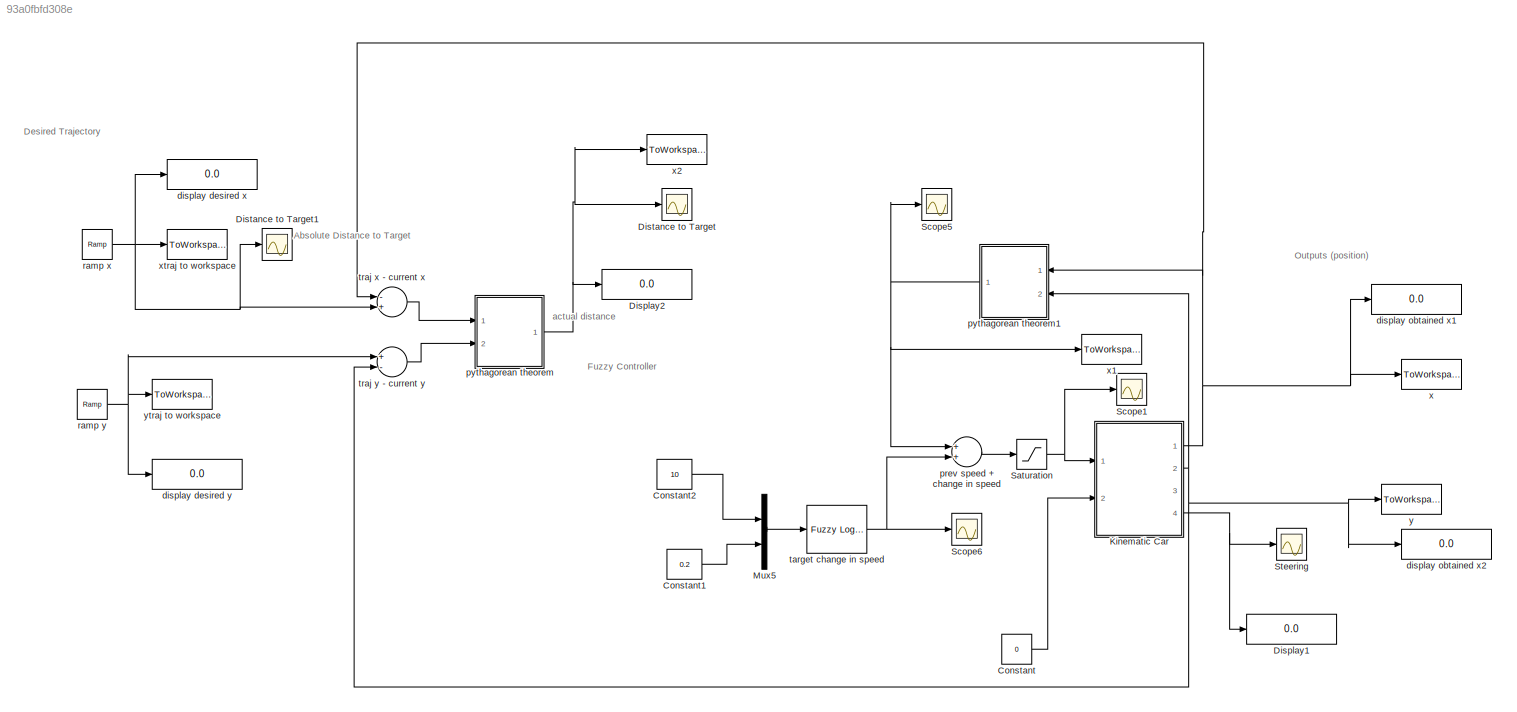
MODEL slx_93a0fbfd308e
KIND model
CONFIG AbsTol = auto
CONFIG FixedStep = auto
CONFIG MaxStep = auto
CONFIG MinStep = auto
CONFIG RelTol = 1e-3
CONFIG SampleTimeConstraint = Unconstrained
CONFIG Solver = FixedStepDiscrete
CONFIG SolverMode = Auto
CONFIG SolverName = FixedStepDiscrete
CONFIG StartTime = 0.0
CONFIG StopTime = 25
BLOCK [Constant] Constant
  Value = 0
BLOCK [Constant] Constant1
  Value = 0.2
BLOCK [Constant] Constant2
  Value = 10
BLOCK [Display] Display1
  Decimation = 1
  Ports = [1]
BLOCK [Display] Display2
  Decimation = 1
  Ports = [1]
BLOCK [Scope] Distance to Target
  Ports = [1]
  ScopeSpecificationString = Simulink.scopes.TimeScopeBlockCfg('CurrentConfiguration', extmgr.ConfigurationSet(extmgr.Configuration('Core','General UI',true),extmgr.Configuration('Core','Source UI',true),extmgr.Configuration('Sources','WiredSimulink',true,'DataLoggingVariableName','ScopeData1','DataLoggingLimitDataPoints',true,'DataLoggingSaveFormat','Array','DataLoggingDecimation','1','DataLoggingDecimateData',true),extmgr.C...<+1729ch>
BLOCK [Scope] Distance to Target1
  Ports = [1]
  ScopeSpecificationString = C++SS(StrPVP('Location','[10, 87, 1361, 757]'),StrPVP('Open','off'),MxPVP('AxesTitles',24,'struct(''axes1'',''%<SignalLabel>'')'),MxPVP('ScopeGraphics',28,'struct(''FigureColor'',''[0.5 0.5 0.5]'',''AxesColor'',''[0 0 0]'',''AxesTickColor'',''[1 1 1]'',''LineColors'',''[1 1 0;1 0 1;0 1 1;1 0 0;0 1 0;0 0 1]'',''LineStyles'',''-|-|-|-|-|-'',''LineWidths'',''[0.5 0.5 0.5 0.5 0.5 0.5]'',''MarkerStyles...<+240ch>
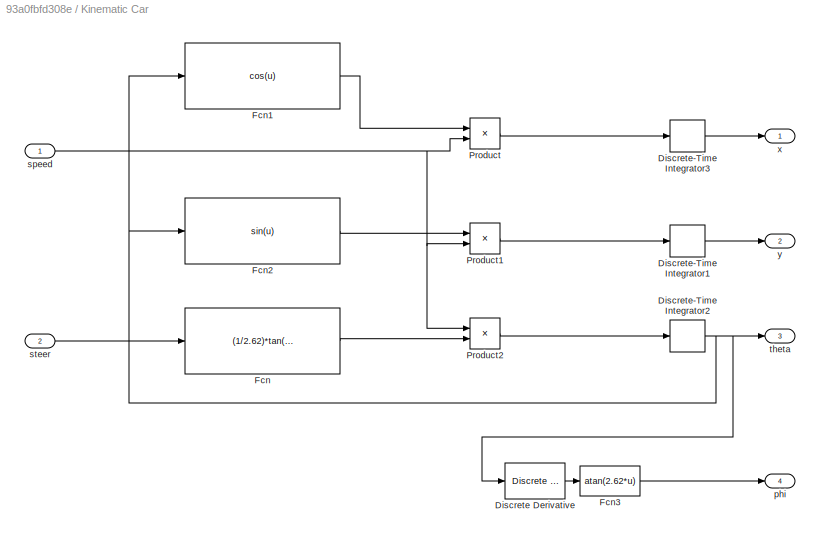
BLOCK [SubSystem] Kinematic Car
  Ports = [2, 4]
  RequestExecContextInheritance = off
  Variant = off
BLOCK [Reference] Kinematic Car/Discrete Derivative  REF=simulink/Discrete/Discrete Derivative
  Ports = [1, 1]
  SourceBlock = simulink/Discrete/Discrete Derivative
  SourceType = Discrete Derivative
BLOCK [DiscreteIntegrator] Kinematic Car/Discrete-Time Integrator1
  ICPrevOutput = DiscIntNeverNeededParam
  ICPrevScaledInput = DiscIntNeverNeededParam
  InitialConditionSetting = State (most efficient)
  Ports = [1, 1]
BLOCK [DiscreteIntegrator] Kinematic Car/Discrete-Time Integrator2
  ICPrevOutput = DiscIntNeverNeededParam
  ICPrevScaledInput = DiscIntNeverNeededParam
  InitialCondition = atan(pi/4)
  InitialConditionSetting = State (most efficient)
  Ports = [1, 1]
BLOCK [DiscreteIntegrator] Kinematic Car/Discrete-Time Integrator3
  ICPrevOutput = DiscIntNeverNeededParam
  ICPrevScaledInput = DiscIntNeverNeededParam
  InitialConditionSetting = State (most efficient)
  Ports = [1, 1]
BLOCK [Fcn] Kinematic Car/Fcn
  Expr = (1/2.62)*tan(u)
BLOCK [Fcn] Kinematic Car/Fcn1
  Expr = cos(u)
BLOCK [Fcn] Kinematic Car/Fcn2
  Expr = sin(u)
BLOCK [Fcn] Kinematic Car/Fcn3
  Expr = atan(2.62*u)
BLOCK [Product] Kinematic Car/Product
  InputSameDT = off
  OutDataTypeStr = Inherit: Inherit via internal rule
  Ports = [2, 1]
  RndMeth = Floor
  SaturateOnIntegerOverflow = off
BLOCK [Product] Kinematic Car/Product1
  InputSameDT = off
  OutDataTypeStr = Inherit: Inherit via internal rule
  Ports = [2, 1]
  RndMeth = Floor
  SaturateOnIntegerOverflow = off
BLOCK [Product] Kinematic Car/Product2
  InputSameDT = off
  OutDataTypeStr = Inherit: Inherit via internal rule
  Ports = [2, 1]
  RndMeth = Floor
  SaturateOnIntegerOverflow = off
BLOCK [Outport] Kinematic Car/phi
  IconDisplay = Port number
  Port = 4
BLOCK [Inport] Kinematic Car/speed
  IconDisplay = Port number
BLOCK [Inport] Kinematic Car/steer
  IconDisplay = Port number
  Port = 2
BLOCK [Outport] Kinematic Car/theta
  IconDisplay = Port number
  Port = 3
BLOCK [Outport] Kinematic Car/x
  IconDisplay = Port number
BLOCK [Outport] Kinematic Car/y
  IconDisplay = Port number
  Port = 2
BLOCK [Mux] Mux5
  DisplayOption = bar
  Inputs = 2
  Ports = [2, 1]
BLOCK [Saturate] Saturation
  InputPortMap = u0
  LowerLimit = 0
  Ports = [1, 1]
  UpperLimit = 8.9408
BLOCK [Scope] Scope1
  Ports = [1]
  ScopeSpecificationString = Simulink.scopes.TimeScopeBlockCfg('CurrentConfiguration', extmgr.ConfigurationSet(extmgr.Configuration('Core','General UI',true),extmgr.Configuration('Core','Source UI',true),extmgr.Configuration('Sources','WiredSimulink',true,'DataLoggingLimitDataPoints',true,'DataLoggingSaveFormat','Array','DataLoggingDecimation','1','DataLoggingDecimateData',true),extmgr.Configuration('Visuals','Time Domain',tr...<+1617ch>
BLOCK [Scope] Scope5
  Ports = [1]
  ScopeSpecificationString = Simulink.scopes.TimeScopeBlockCfg('CurrentConfiguration', extmgr.ConfigurationSet(extmgr.Configuration('Core','General UI',true),extmgr.Configuration('Core','Source UI',true),extmgr.Configuration('Sources','WiredSimulink',true,'DataLoggingVariableName','ScopeData3','DataLoggingLimitDataPoints',true,'DataLoggingSaveFormat','Array','DataLoggingDecimation','1','DataLoggingDecimateData',true),extmgr.C...<+1726ch>
BLOCK [Scope] Scope6
  Ports = [1]
  ScopeSpecificationString = Simulink.scopes.TimeScopeBlockCfg('CurrentConfiguration', extmgr.ConfigurationSet(extmgr.Configuration('Core','General UI',true),extmgr.Configuration('Core','Source UI',true),extmgr.Configuration('Sources','WiredSimulink',true,'DataLoggingVariableName','ScopeData7','DataLoggingLimitDataPoints',true,'DataLoggingSaveFormat','Array','DataLoggingDecimation','1','DataLoggingDecimateData',true),extmgr.C...<+1773ch>
BLOCK [Scope] Steering
  Ports = [1]
  ScopeSpecificationString = Simulink.scopes.TimeScopeBlockCfg('CurrentConfiguration', extmgr.ConfigurationSet(extmgr.Configuration('Core','General UI',true),extmgr.Configuration('Core','Source UI',true),extmgr.Configuration('Sources','WiredSimulink',true,'DataLoggingVariableName','ScopeData4','DataLoggingLimitDataPoints',true,'DataLoggingSaveFormat','Array','DataLoggingDecimation','1','DataLoggingDecimateData',true),extmgr.C...<+1678ch>
BLOCK [Display] display desired x
  Decimation = 1
  Ports = [1]
BLOCK [Display] display desired y
  Decimation = 1
  Ports = [1]
BLOCK [Display] display obtained x1
  Decimation = 1
  Ports = [1]
BLOCK [Display] display obtained x2
  Decimation = 1
  Ports = [1]
BLOCK [Sum] prev speed + change in speed
  InputSameDT = off
  OutDataTypeStr = Inherit: Inherit via internal rule
  Ports = [2, 1]
  SaturateOnIntegerOverflow = off
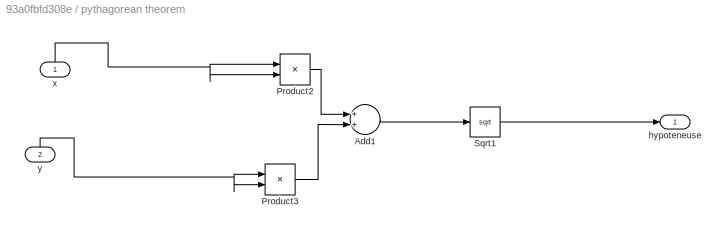
BLOCK [SubSystem] pythagorean theorem
  Ports = [2, 1]
  RequestExecContextInheritance = off
  Variant = off
BLOCK [Sum] pythagorean theorem/Add1
  InputSameDT = off
  OutDataTypeStr = Inherit: Inherit via internal rule
  Ports = [2, 1]
  SaturateOnIntegerOverflow = off
BLOCK [Product] pythagorean theorem/Product2
  InputSameDT = off
  OutDataTypeStr = Inherit: Inherit via internal rule
  Ports = [2, 1]
  RndMeth = Floor
  SaturateOnIntegerOverflow = off
BLOCK [Product] pythagorean theorem/Product3
  InputSameDT = off
  OutDataTypeStr = Inherit: Inherit via internal rule
  Ports = [2, 1]
  RndMeth = Floor
  SaturateOnIntegerOverflow = off
BLOCK [Sqrt] pythagorean theorem/Sqrt1
BLOCK [Outport] pythagorean theorem/hypoteneuse
  IconDisplay = Port number
BLOCK [Inport] pythagorean theorem/x
  IconDisplay = Port number
BLOCK [Inport] pythagorean theorem/y
  IconDisplay = Port number
  Port = 2
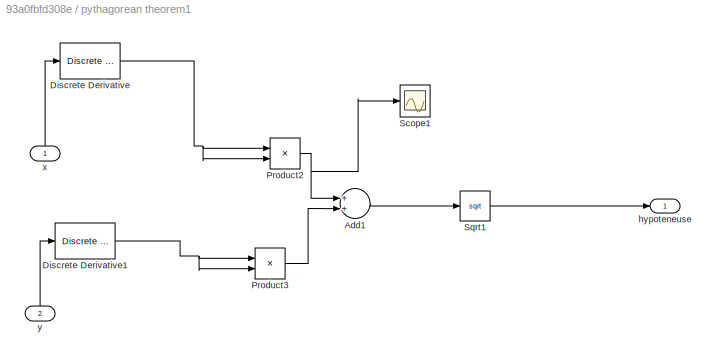
BLOCK [SubSystem] pythagorean theorem1
  Ports = [2, 1]
  RequestExecContextInheritance = off
  Variant = off
BLOCK [Sum] pythagorean theorem1/Add1
  InputSameDT = off
  OutDataTypeStr = Inherit: Inherit via internal rule
  Ports = [2, 1]
  SaturateOnIntegerOverflow = off
BLOCK [Reference] pythagorean theorem1/Discrete Derivative  REF=simulink/Discrete/Discrete Derivative
  Ports = [1, 1]
  SourceBlock = simulink/Discrete/Discrete Derivative
  SourceType = Discrete Derivative
BLOCK [Reference] pythagorean theorem1/Discrete Derivative1  REF=simulink/Discrete/Discrete Derivative
  Ports = [1, 1]
  SourceBlock = simulink/Discrete/Discrete Derivative
  SourceType = Discrete Derivative
BLOCK [Product] pythagorean theorem1/Product2
  InputSameDT = off
  OutDataTypeStr = Inherit: Inherit via internal rule
  Ports = [2, 1]
  RndMeth = Floor
  SaturateOnIntegerOverflow = off
BLOCK [Product] pythagorean theorem1/Product3
  InputSameDT = off
  OutDataTypeStr = Inherit: Inherit via internal rule
  Ports = [2, 1]
  RndMeth = Floor
  SaturateOnIntegerOverflow = off
BLOCK [Scope] pythagorean theorem1/Scope1
  Ports = [1]
  ScopeSpecificationString = C++SS(StrPVP('Location','[188, 365, 512, 604]'),StrPVP('Open','off'),MxPVP('AxesTitles',24,'struct(''axes1'',''%<SignalLabel>'')'),MxPVP('ScopeGraphics',28,'struct(''FigureColor'',''[0.5 0.5 0.5]'',''AxesColor'',''[0 0 0]'',''AxesTickColor'',''[1 1 1]'',''LineColors'',''[1 1 0;1 0 1;0 1 1;1 0 0;0 1 0;0 0 1]'',''LineStyles'',''-|-|-|-|-|-'',''LineWidths'',''[0.5 0.5 0.5 0.5 0.5 0.5]'',''MarkerStyle...<+196ch>
BLOCK [Sqrt] pythagorean theorem1/Sqrt1
BLOCK [Outport] pythagorean theorem1/hypoteneuse
  IconDisplay = Port number
BLOCK [Inport] pythagorean theorem1/x
  IconDisplay = Port number
BLOCK [Inport] pythagorean theorem1/y
  IconDisplay = Port number
  Port = 2
BLOCK [Reference] ramp x  REF=simulink/Sources/Ramp
  Ports = [0, 1]
  SourceBlock = simulink/Sources/Ramp
  SourceType = Ramp
BLOCK [Reference] ramp y  REF=simulink/Sources/Ramp
  Ports = [0, 1]
  SourceBlock = simulink/Sources/Ramp
  SourceType = Ramp
BLOCK [Reference] target change in speed  REF=fuzblock/Fuzzy Logic   (lib defined in mdl_858b3b3e7478)
Controller
  Ports = [1, 1]
  SourceBlock = fuzblock/Fuzzy Logic \nController
  SourceType = FIS
BLOCK [Sum] traj x - current x
  InputSameDT = off
  Inputs = -+
  OutDataTypeStr = Inherit: Inherit via internal rule
  Ports = [2, 1]
  SaturateOnIntegerOverflow = off
BLOCK [Sum] traj y - current y
  InputSameDT = off
  Inputs = +-
  OutDataTypeStr = Inherit: Inherit via internal rule
  Ports = [2, 1]
  SaturateOnIntegerOverflow = off
BLOCK [ToWorkspace] x
  FixptAsFi = on
  MaxDataPoints = inf
  Ports = [1]
  SampleTime = -1
  Save2DSignal = 3-D array (concatenate along third dimension)
  VariableName = x
BLOCK [ToWorkspace] x1
  FixptAsFi = on
  MaxDataPoints = inf
  Ports = [1]
  SampleTime = -1
  Save2DSignal = 3-D array (concatenate along third dimension)
  VariableName = speed
BLOCK [ToWorkspace] x2
  FixptAsFi = on
  MaxDataPoints = inf
  Ports = [1]
  SampleTime = -1
  Save2DSignal = 3-D array (concatenate along third dimension)
  VariableName = dist
BLOCK [ToWorkspace] xtraj to workspace
  FixptAsFi = on
  MaxDataPoints = inf
  Ports = [1]
  SampleTime = -1
  Save2DSignal = 3-D array (concatenate along third dimension)
  VariableName = xtraj
BLOCK [ToWorkspace] y
  FixptAsFi = on
  MaxDataPoints = inf
  Ports = [1]
  SampleTime = -1
  Save2DSignal = 3-D array (concatenate along third dimension)
  VariableName = y
BLOCK [ToWorkspace] ytraj to workspace
  FixptAsFi = on
  MaxDataPoints = inf
  Ports = [1]
  SampleTime = -1
  Save2DSignal = 3-D array (concatenate along third dimension)
  VariableName = ytraj
ANNOTATION (root): actual distance
ANNOTATION (root): Absolute Distance to Target
ANNOTATION (root): Desired Trajectory
ANNOTATION (root): Fuzzy Controller
ANNOTATION (root): Outputs (position)
LINE Constant1:1 -> Mux5:2
LINE Constant2:1 -> Mux5:1
LINE Constant:1 -> Kinematic Car:2
LINE Kinematic Car/Discrete Derivative:1 -> Kinematic Car/Fcn3:1
LINE Kinematic Car/Discrete-Time Integrator1:1 -> Kinematic Car/y:1
NET Kinematic Car/Discrete-Time Integrator2:1 -> Kinematic Car/Discrete Derivative:1, Kinematic Car/Fcn1:1, Kinematic Car/Fcn2:1, Kinematic Car/theta:1
LINE Kinematic Car/Discrete-Time Integrator3:1 -> Kinematic Car/x:1
LINE Kinematic Car/Fcn1:1 -> Kinematic Car/Product:1
LINE Kinematic Car/Fcn2:1 -> Kinematic Car/Product1:1
LINE Kinematic Car/Fcn3:1 -> Kinematic Car/phi:1
LINE Kinematic Car/Fcn:1 -> Kinematic Car/Product2:2
LINE Kinematic Car/Product1:1 -> Kinematic Car/Discrete-Time Integrator1:1
LINE Kinematic Car/Product2:1 -> Kinematic Car/Discrete-Time Integrator2:1
LINE Kinematic Car/Product:1 -> Kinematic Car/Discrete-Time Integrator3:1
NET Kinematic Car/speed:1 -> Kinematic Car/Product1:2, Kinematic Car/Product2:1, Kinematic Car/Product:2
LINE Kinematic Car/steer:1 -> Kinematic Car/Fcn:1
NET Kinematic Car:1 -> display obtained x1:1, pythagorean theorem1:1, traj x - current x:1, x:1
NET Kinematic Car:2 -> display obtained x2:1, pythagorean theorem1:2, traj y - current y:2, y:1
NET Kinematic Car:4 -> Display1:1, Steering:1
LINE Mux5:1 -> target change in speed:1
NET Saturation:1 -> Kinematic Car:1, Scope1:1
LINE prev speed + change in speed:1 -> Saturation:1
LINE pythagorean theorem/Add1:1 -> pythagorean theorem/Sqrt1:1
LINE pythagorean theorem/Product2:1 -> pythagorean theorem/Add1:1
LINE pythagorean theorem/Product3:1 -> pythagorean theorem/Add1:2
LINE pythagorean theorem/Sqrt1:1 -> pythagorean theorem/hypoteneuse:1
NET pythagorean theorem/x:1 -> pythagorean theorem/Product2:1, pythagorean theorem/Product2:2
NET pythagorean theorem/y:1 -> pythagorean theorem/Product3:1, pythagorean theorem/Product3:2
LINE pythagorean theorem1/Add1:1 -> pythagorean theorem1/Sqrt1:1
NET pythagorean theorem1/Discrete Derivative1:1 -> pythagorean theorem1/Product3:1, pythagorean theorem1/Product3:2
NET pythagorean theorem1/Discrete Derivative:1 -> pythagorean theorem1/Product2:1, pythagorean theorem1/Product2:2
NET pythagorean theorem1/Product2:1 -> pythagorean theorem1/Add1:1, pythagorean theorem1/Scope1:1
LINE pythagorean theorem1/Product3:1 -> pythagorean theorem1/Add1:2
LINE pythagorean theorem1/Sqrt1:1 -> pythagorean theorem1/hypoteneuse:1
LINE pythagorean theorem1/x:1 -> pythagorean theorem1/Discrete Derivative:1
LINE pythagorean theorem1/y:1 -> pythagorean theorem1/Discrete Derivative1:1
NET pythagorean theorem1:1 -> Scope5:1, prev speed + change in speed:1, x1:1
NET pythagorean theorem:1 -> Display2:1, Distance to Target:1, x2:1
NET ramp x:1 -> Distance to Target1:1, display desired x:1, traj x - current x:2, xtraj to workspace:1
NET ramp y:1 -> display desired y:1, traj y - current y:1, ytraj to workspace:1
NET target change in speed:1 -> Scope6:1, prev speed + change in speed:2
LINE traj x - current x:1 -> pythagorean theorem:1
LINE traj y - current y:1 -> pythagorean theorem:2
note: NET lines group one-source signal fan-out (src -> all destinations, sorted); 1:1 wires keep LINE
